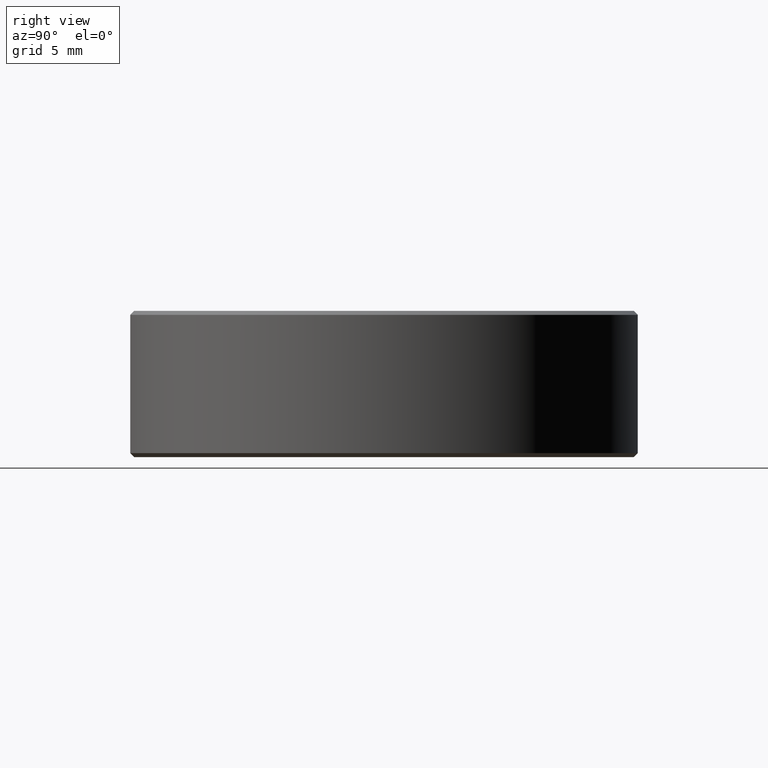
[diagram: clean part render]
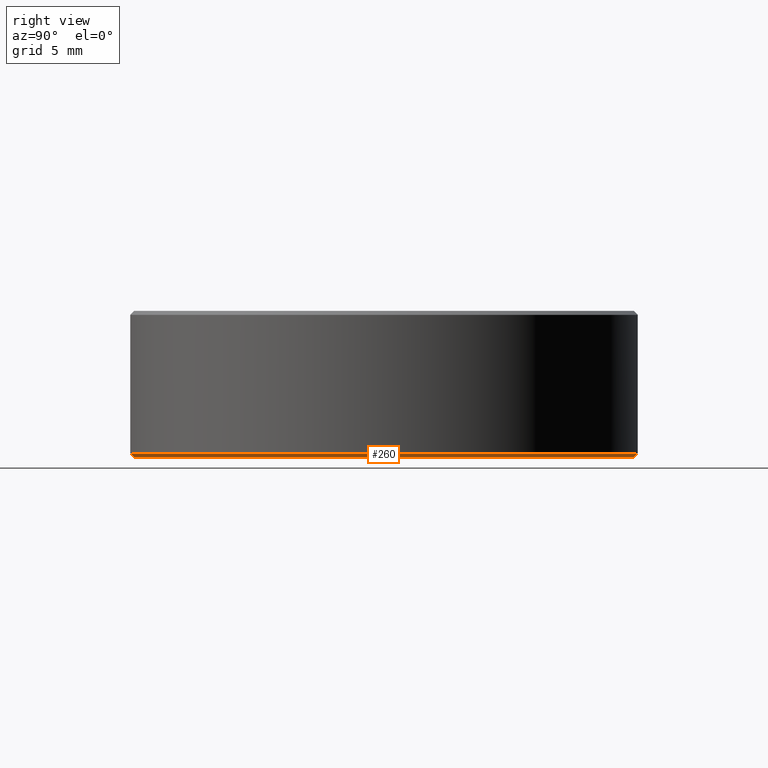
[diagram: same view with one face highlighted and labeled with its STEP entity id]
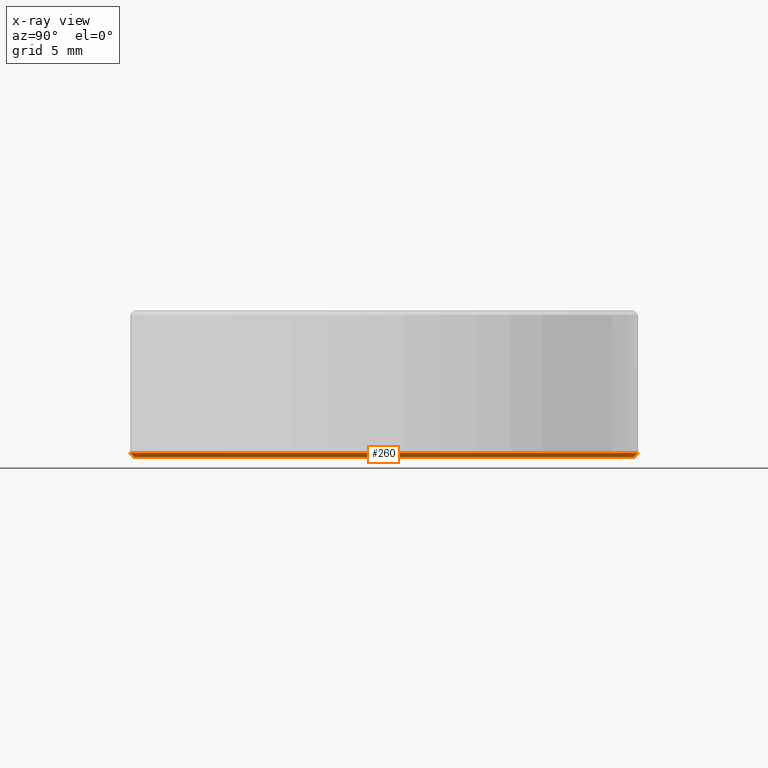
[diagram: x-ray of the same camera — body ghosted, the highlighted face saturated]
A machine part, right view. The second image highlights one B-rep face of the part: STEP entity #260.
The next image is the same camera in x-ray: the body ghosted, the highlighted face saturated — about 0% of this face is hidden behind the body in this view.
In plain terms, the highlighted conical surface has half-angle 45 deg.
Its self-contained STEP definition (entity closure, byte-faithful):
#14 = DIRECTION ( 'NONE',  ( 0.0000000000000000000, -3.061515884555942700E-016, 1.000000000000000000 ) ) ;
#27 = EDGE_CURVE ( 'NONE', #162, #123, #113, .T. ) ;
#30 = VECTOR ( 'NONE', #31, 39.37007874015748900 ) ;
#31 = DIRECTION ( 'NONE',  ( 8.659560562355003100E-017, 0.7071067811865531200, 0.7071067811865416900 ) ) ;
#35 = AXIS2_PLACEMENT_3D ( 'NONE', #291, #14, #239 ) ;
#36 = CONICAL_SURFACE ( 'NONE', #35, 0.4921259842519686800, 0.7853981633974567200 ) ;
#39 = CARTESIAN_POINT ( 'NONE',  ( 6.075019554825453600E-017, 0.4921259842519686800, -0.1482116097789675200 ) ) ;
#45 = CARTESIAN_POINT ( 'NONE',  ( 0.0000000000000000000, 0.5000000000000000000, -0.1403375940309363200 ) ) ;
#51 = ORIENTED_EDGE ( 'NONE', *, *, #27, .F. ) ;
#61 = LINE ( 'NONE', #70, #99 ) ;
#64 = EDGE_CURVE ( 'NONE', #162, #282, #231, .T. ) ;
#66 = ORIENTED_EDGE ( 'NONE', *, *, #126, .F. ) ;
#70 = CARTESIAN_POINT ( 'NONE',  ( 0.0000000000000000000, -0.4921259842519686800, -0.1482116097789678300 ) ) ;
#83 = DIRECTION ( 'NONE',  ( 0.0000000000000000000, 1.000000000000000000, 3.073328992872296400E-016 ) ) ;
#99 = VECTOR ( 'NONE', #240, 39.37007874015748100 ) ;
#100 = DIRECTION ( 'NONE',  ( -0.0000000000000000000, 3.061515884555943100E-016, -1.000000000000000000 ) ) ;
#113 = CIRCLE ( 'NONE', #254, 0.4921259842519686800 ) ;
#123 = VERTEX_POINT ( 'NONE', #145 ) ;
#126 = EDGE_CURVE ( 'NONE', #266, #282, #272, .T. ) ;
#137 = FACE_OUTER_BOUND ( 'NONE', #144, .T. ) ;
#143 = CARTESIAN_POINT ( 'NONE',  ( 6.026805113914142300E-017, 0.4921259842519686800, -0.1482116097789675200 ) ) ;
#144 = EDGE_LOOP ( 'NONE', ( #51, #269, #66, #225 ) ) ;
#145 = CARTESIAN_POINT ( 'NONE',  ( 0.0000000000000000000, -0.4921259842519686800, -0.1482116097789678300 ) ) ;
#162 = VERTEX_POINT ( 'NONE', #39 ) ;
#199 = CARTESIAN_POINT ( 'NONE',  ( 6.123233995736766000E-017, -0.5000000000000000000, -0.1403375940309366200 ) ) ;
#225 = ORIENTED_EDGE ( 'NONE', *, *, #298, .F. ) ;
#231 = LINE ( 'NONE', #143, #30 ) ;
#232 = CARTESIAN_POINT ( 'NONE',  ( 0.0000000000000000000, 7.231927286352641300E-018, -0.1482116097789676600 ) ) ;
#234 = CARTESIAN_POINT ( 'NONE',  ( 0.0000000000000000000, 4.821284857568531500E-018, -0.1403375940309364900 ) ) ;
#239 = DIRECTION ( 'NONE',  ( 0.0000000000000000000, -1.000000000000000000, -3.122502256758251800E-016 ) ) ;
#240 = DIRECTION ( 'NONE',  ( 0.0000000000000000000, -0.7071067811865536800, 0.7071067811865413600 ) ) ;
#249 = DIRECTION ( 'NONE',  ( 0.0000000000000000000, 1.000000000000000000, 3.122502256758251800E-016 ) ) ;
#254 = AXIS2_PLACEMENT_3D ( 'NONE', #232, #100, #249 ) ;
#257 = DIRECTION ( 'NONE',  ( 0.0000000000000000000, -3.061515884555942700E-016, 1.000000000000000000 ) ) ;
#260 = ADVANCED_FACE ( 'NONE', ( #137 ), #36, .T. ) ;
#266 = VERTEX_POINT ( 'NONE', #199 ) ;
#269 = ORIENTED_EDGE ( 'NONE', *, *, #64, .T. ) ;
#272 = CIRCLE ( 'NONE', #275, 0.5000000000000000000 ) ;
#275 = AXIS2_PLACEMENT_3D ( 'NONE', #234, #257, #83 ) ;
#282 = VERTEX_POINT ( 'NONE', #45 ) ;
#291 = CARTESIAN_POINT ( 'NONE',  ( 0.0000000000000000000, 7.231927286352642800E-018, -0.1482116097789676600 ) ) ;
#298 = EDGE_CURVE ( 'NONE', #123, #266, #61, .T. ) ;